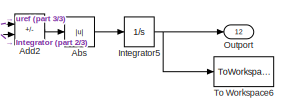
[diagram: root canvas - part 1/3, top right region]
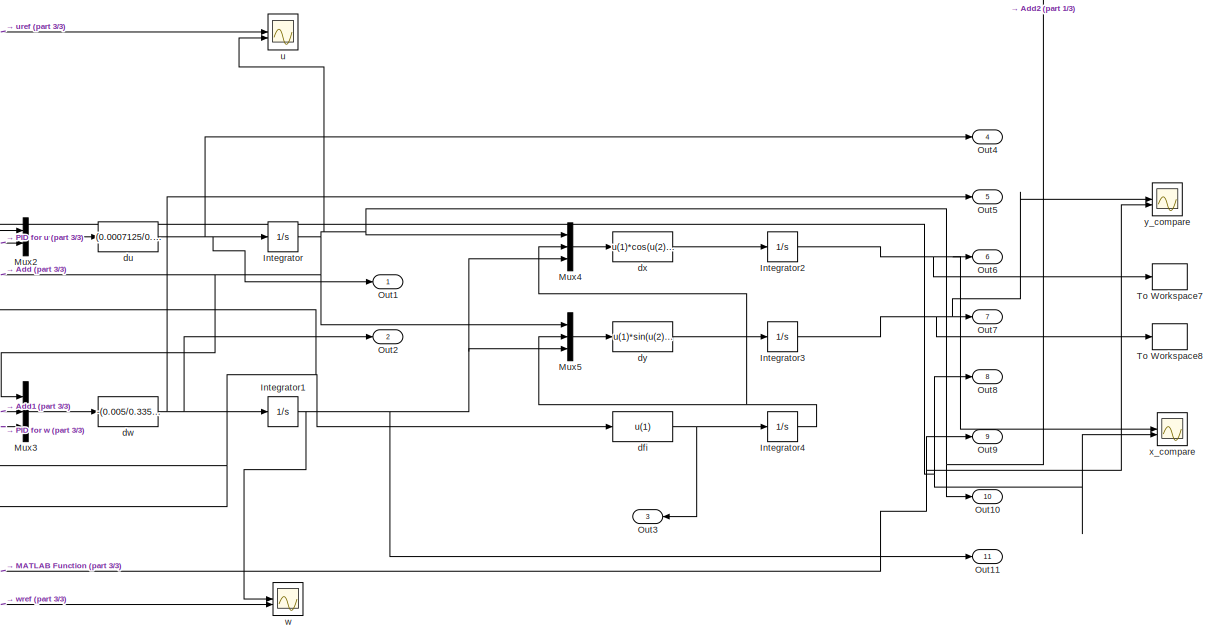
[diagram: root canvas - part 2/3, center side, full height]
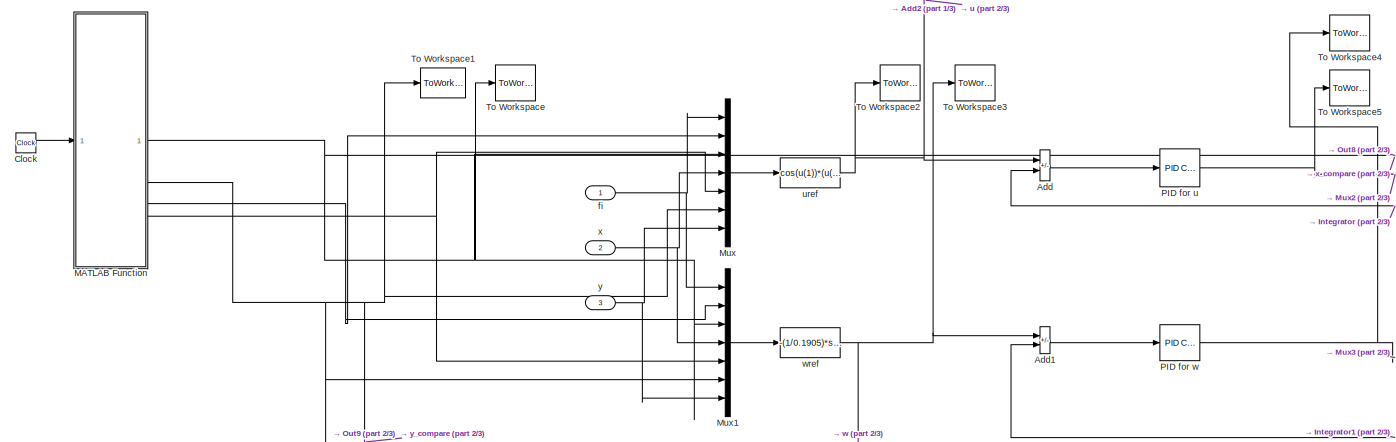
[diagram: root canvas - part 3/3, middle left region]
MODEL slx_e78820fd19c5
KIND model
CONFIG AbsTol = auto
CONFIG EnableMultiTasking = off
CONFIG FixedStep = auto
CONFIG MaxStep = auto
CONFIG MinStep = auto
CONFIG RelTol = 1e-3
CONFIG SampleTimeConstraint = Unconstrained
CONFIG SolverName = VariableStepAuto
CONFIG StartTime = 0.0
CONFIG StopTime = 60
BLOCK [Abs] Abs
  SaturateOnIntegerOverflow = off
BLOCK [Sum] Add
  IconShape = rectangular
  Inputs = +-
BLOCK [Sum] Add1
  IconShape = rectangular
  Inputs = +-
BLOCK [Sum] Add2
  IconShape = rectangular
  Inputs = +-
BLOCK [Clock] Clock
BLOCK [Integrator] Integrator
  ContinuousStateAttributes = "u"
BLOCK [Integrator] Integrator1
  ContinuousStateAttributes = "w"
BLOCK [Integrator] Integrator2
BLOCK [Integrator] Integrator3
BLOCK [Integrator] Integrator4
BLOCK [Integrator] Integrator5
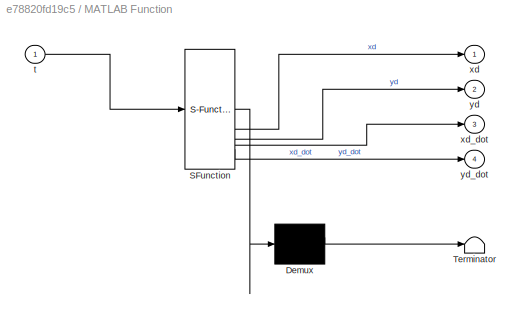
BLOCK [SubSystem] MATLAB Function
  ErrorFcn = Stateflow.Translate.translate
  PermitHierarchicalResolution = ExplicitOnly
  SFBlockType = MATLAB Function
  TreatAsAtomicUnit = on
BLOCK [Demux] MATLAB Function/ Demux 
  Outputs = 1
BLOCK [S-Function] MATLAB Function/ SFunction 
  EnableBusSupport = on
  FunctionName = sf_sfun
  PortCounts = [1 5]
  SFcnIsStateOwnerBlock = off
  SFunctionDeploymentMode = off
  Tag = Stateflow S-Function 2
BLOCK [Terminator] MATLAB Function/ Terminator 
BLOCK [Inport] MATLAB Function/t
BLOCK [Outport] MATLAB Function/xd
BLOCK [Outport] MATLAB Function/xd_dot
  Port = 3
BLOCK [Outport] MATLAB Function/yd
  Port = 2
BLOCK [Outport] MATLAB Function/yd_dot
  Port = 4
BLOCK [Mux] Mux
  DisplayOption = bar
  Inputs = 7
BLOCK [Mux] Mux1
  DisplayOption = bar
  Inputs = 7
BLOCK [Mux] Mux2
  DisplayOption = bar
  Inputs = 2
BLOCK [Mux] Mux3
  DisplayOption = bar
  Inputs = 3
BLOCK [Mux] Mux4
  DisplayOption = bar
  Inputs = 3
BLOCK [Mux] Mux5
  DisplayOption = bar
  Inputs = 3
BLOCK [Outport] Out1
  SignalName = du
BLOCK [Outport] Out10
  Port = 10
  SignalName = u
BLOCK [Outport] Out11
  Port = 11
  SignalName = w
BLOCK [Outport] Out2
  Port = 2
  SignalName = dw
BLOCK [Outport] Out3
  Port = 3
  SignalName = dfi
BLOCK [Outport] Out4
  Port = 4
  SignalName = du
BLOCK [Outport] Out5
  Port = 5
  SignalName = dw
BLOCK [Outport] Out6
  Port = 6
  SignalName = x
BLOCK [Outport] Out7
  Port = 7
  SignalName = y
BLOCK [Outport] Out8
  Port = 8
  SignalName = xd
BLOCK [Outport] Out9
  Port = 9
  SignalName = yd
BLOCK [Outport] Outport
  Port = 12
BLOCK [Reference] PID for u  REF=slpidlib/PID Controller
  LibrarySourceBlock = simulink/Continuous/PID Controller
  SourceBlock = slpidlib/PID Controller
  SourceType = PID 1dof
BLOCK [Reference] PID for w  REF=slpidlib/PID Controller
  LibrarySourceBlock = simulink/Continuous/PID Controller
  SourceBlock = slpidlib/PID Controller
  SourceType = PID 1dof
BLOCK [ToWorkspace] To Workspace
  FixptAsFi = on
  MaxDataPoints = inf
  SampleTime = -1
  VariableName = xd
BLOCK [ToWorkspace] To Workspace1
  FixptAsFi = on
  MaxDataPoints = inf
  SampleTime = -1
  VariableName = yd
BLOCK [ToWorkspace] To Workspace2
  FixptAsFi = on
  MaxDataPoints = inf
  SampleTime = -1
  SaveFormat = Timeseries
  VariableName = ucref
BLOCK [ToWorkspace] To Workspace3
  FixptAsFi = on
  MaxDataPoints = inf
  SampleTime = -1
  SaveFormat = Timeseries
  VariableName = wcref
BLOCK [ToWorkspace] To Workspace4
  FixptAsFi = on
  MaxDataPoints = inf
  SampleTime = -1
  SaveFormat = Timeseries
  VariableName = wref
BLOCK [ToWorkspace] To Workspace5
  FixptAsFi = on
  MaxDataPoints = inf
  SampleTime = -1
  SaveFormat = Timeseries
  VariableName = uref
BLOCK [ToWorkspace] To Workspace6
  FixptAsFi = on
  MaxDataPoints = inf
  SampleTime = -1
  VariableName = IAE_Value
BLOCK [ToWorkspace] To Workspace7
  FixptAsFi = on
  MaxDataPoints = inf
  SampleTime = -1
  VariableName = x
BLOCK [ToWorkspace] To Workspace8
  FixptAsFi = on
  MaxDataPoints = inf
  SampleTime = -1
  VariableName = y
BLOCK [Fcn] dfi
  Expr = u(1)
BLOCK [Fcn] du
  Expr = (0.0007125/0.3088)*u(1)*u(1) - (1.2484/0.3088) + (u(2)/0.3088)
BLOCK [Fcn] dw
  Expr = -(0.005/0.3350)*u(1)*u(2) - (1.3207/0.335)*u(2) + (u(3)/0.3350)
BLOCK [Fcn] dx
  Expr = u(1)*cos(u(2)) - u(3)*0.1905*sin(u(2))
BLOCK [Fcn] dy
  Expr = u(1)*sin(u(2)) + 0.1905*u(3)*cos(u(2))
BLOCK [Inport] fi
BLOCK [Scope] u
  Floating = off
  NumInputPorts = 2
  ScopeSpecificationString = Simulink.scopes.TimeScopeBlockCfg('CurrentConfiguration', extmgr.ConfigurationSet(extmgr.Configuration('Core','General UI',true),extmgr.Configuration('Core','Source UI',true),extmgr.Configuration('Sources','WiredSimulink',true,'SampleTime','1.0'),extmgr.Configuration('Visuals','Time Domain',true,'SerializedDisplays',{struct('MinYLimReal','-3.0','MaxYLimReal','3.0','YLabelReal','Linear Velocity','M...<+1818ch>
BLOCK [Fcn] uref
  Expr = cos(u(1))*(u(2) + tanh(u(3) - u(4))) + sin(u(1))*(u(5) + tanh(u(6) - u(7)))
BLOCK [Scope] w
  Floating = off
  NumInputPorts = 2
  ScopeSpecificationString = Simulink.scopes.TimeScopeBlockCfg('CurrentConfiguration', extmgr.ConfigurationSet(extmgr.Configuration('Core','General UI',true),extmgr.Configuration('Core','Source UI',true),extmgr.Configuration('Sources','WiredSimulink',true,'DataLoggingVariableName','ScopeData3'),extmgr.Configuration('Visuals','Time Domain',true,'SerializedDisplays',{struct('MinYLimReal','-7.31349','MaxYLimReal','7.3135','YLabe...<+1750ch>
BLOCK [Fcn] wref
  Expr = -(1/0.1905)*sin(u(1))*(u(2) + tanh(u(3) - u(4))) + (1/0.1905)*cos(u(1))*(u(5) + tanh(u(6) - u(7)))
BLOCK [Inport] x
  Port = 2
BLOCK [Scope] x_compare
  Floating = off
  NumInputPorts = 2
  ScopeSpecificationString = Simulink.scopes.TimeScopeBlockCfg('CurrentConfiguration', extmgr.ConfigurationSet(extmgr.Configuration('Core','General UI',true),extmgr.Configuration('Core','Source UI',true),extmgr.Configuration('Sources','WiredSimulink',true,'DataLoggingVariableName','ScopeData1'),extmgr.Configuration('Visuals','Time Domain',true,'SerializedDisplays',{struct('MinYLimReal','-2.0','MaxYLimReal','1.5','YLabelReal',...<+1684ch>
BLOCK [Inport] y
  Port = 3
BLOCK [Scope] y_compare
  Floating = off
  NumInputPorts = 2
  ScopeSpecificationString = Simulink.scopes.TimeScopeBlockCfg('CurrentConfiguration', extmgr.ConfigurationSet(extmgr.Configuration('Core','General UI',true),extmgr.Configuration('Core','Source UI',true),extmgr.Configuration('Sources','WiredSimulink',true,'DataLoggingVariableName','ScopeData2','SampleTime','0.6'),extmgr.Configuration('Visuals','Time Domain',true,'SerializedDisplays',{struct('MinYLimReal','-0.7','MaxYLimReal',...<+1701ch>
LINE Abs:1 -> Integrator5:1
LINE Add1:1 -> PID for w:1
LINE Add2:1 -> Abs:1
LINE Add:1 -> PID for u:1
LINE Clock:1 -> MATLAB Function:1
NET Integrator1:1 -> Add1:2, Mux2:1, Mux3:2, Mux4:3, Mux5:3, Out11:1, dfi:1, w:1
NET Integrator2:1 -> Out6:1, To Workspace7:1, x_compare:1
NET Integrator3:1 -> Out7:1, To Workspace8:1, y_compare:1
NET Integrator4:1 -> Mux4:2, Mux5:2
NET Integrator5:1 -> Outport:1, To Workspace6:1
NET Integrator:1 -> Add2:2, Add:2, Mux3:1, Mux4:1, Mux5:1, Out10:1, u:2
NET MATLAB Function:1 -> Mux1:3, Mux:3, Out8:1, To Workspace:1, x_compare:2
NET MATLAB Function:2 -> Mux1:6, Mux:6, Out9:1, To Workspace1:1, y_compare:2
NET MATLAB Function:3 -> Mux1:2, Mux:2
NET MATLAB Function:4 -> Mux1:5, Mux:5
LINE Mux1:1 -> wref:1
LINE Mux2:1 -> du:1
LINE Mux3:1 -> dw:1
LINE Mux4:1 -> dx:1
LINE Mux5:1 -> dy:1
LINE Mux:1 -> uref:1
NET PID for u:1 -> Mux2:2, To Workspace5:1
NET PID for w:1 -> Mux3:3, To Workspace4:1
NET dfi:1 -> Integrator4:1, Out3:1
NET du:1 -> Integrator:1, Out1:1, Out4:1
NET dw:1 -> Integrator1:1, Out2:1, Out5:1
LINE dx:1 -> Integrator2:1
LINE dy:1 -> Integrator3:1
NET fi:1 -> Mux1:1, Mux:1
NET uref:1 -> Add2:1, Add:1, To Workspace2:1, u:1
NET wref:1 -> Add1:1, To Workspace3:1, w:2
NET x:1 -> Mux1:4, Mux:4
NET y:1 -> Mux1:7, Mux:7
note: NET lines group one-source signal fan-out (src -> all destinations, sorted); 1:1 wires keep LINE
CHART MATLAB Function states=1 transitions=1
  STATE_LABEL 'eML_blk_kernel()'
  STATE_LABEL 'SCRIPT:\nfunction [xd, yd, xd_dot, yd_dot] = fcn(t)\n\n% Define trajectory parameters. Adjust these values to change the size and shape.\nA = 1.0;\nB = 1.0;\nw1 = 1.0;\nw2 = 1.0;\n\n% Calculate desired positions (8-shape)\nxd = A * sin(w1 * t);\nyd = B * sin(w2 * t) * cos(w1 * t);\n\n% Calculate desired velocities (first derivative of positions)\nxd_dot = A * w1 * cos(w1 * t);\nyd_dot = B * w2 * cos(w2 * t) * co...<+52ch>'
CHART  states=0 transitions=0
